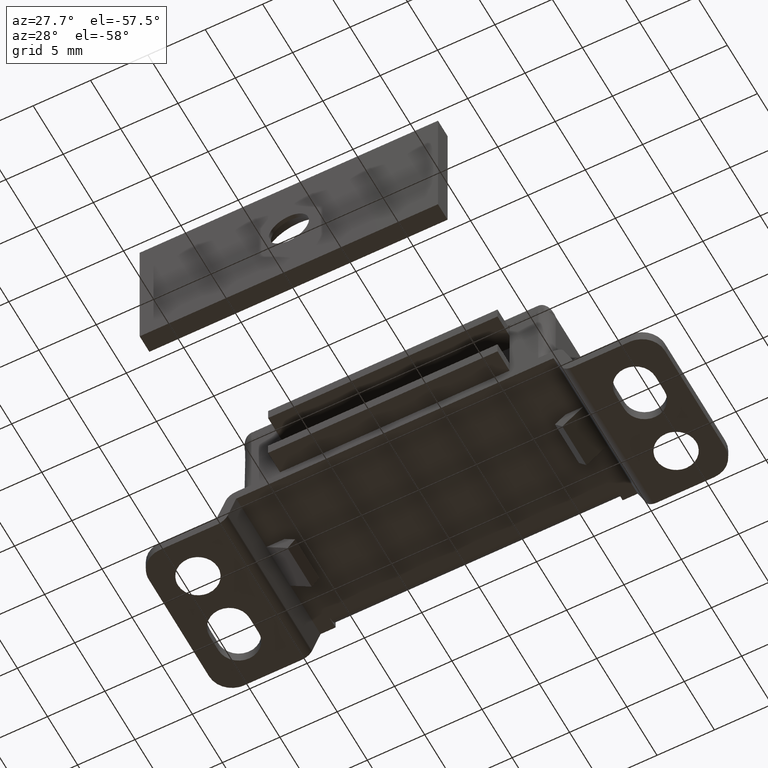
[diagram: clean part render]
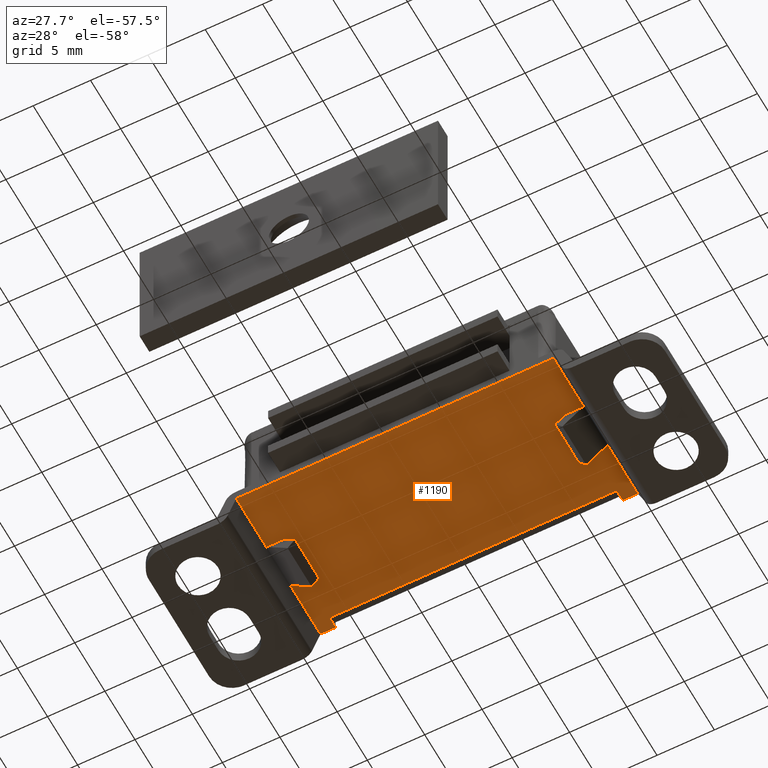
[diagram: same view with one face highlighted and labeled with its STEP entity id]
A machine part, auxiliary view. The second image highlights one B-rep face of the part: STEP entity #1190.
In plain terms, the highlighted face is a freeform B-spline surface patch.
Its self-contained STEP definition (entity closure, byte-faithful):
#512=CARTESIAN_POINT('',(-12.510014999999900,0.0,2.499999999999945));
#513=VERTEX_POINT('',#512);
#520=CARTESIAN_POINT('',(-12.510014999999900,-1.0,2.499999999999945));
#521=VERTEX_POINT('',#520);
#527=CARTESIAN_POINT('',(-12.510014999999900,-1.0,2.499999999999945));
#528=CARTESIAN_POINT('',(-12.510014999999900,0.0,2.499999999999945));
#529=QUASI_UNIFORM_CURVE('',1,(#527,#528),.UNSPECIFIED.,.F.,.U.);
#530=EDGE_CURVE('',#521,#513,#529,.T.);
#542=CARTESIAN_POINT('',(-13.822967000000000,0.0,2.499999999999945));
#543=VERTEX_POINT('',#542);
#544=CARTESIAN_POINT('',(-12.510014999999900,0.0,2.499999999999945));
#545=CARTESIAN_POINT('',(-13.822967000000000,0.0,2.499999999999945));
#546=QUASI_UNIFORM_CURVE('',1,(#544,#545),.UNSPECIFIED.,.F.,.U.);
#547=EDGE_CURVE('',#513,#543,#546,.T.);
#665=CARTESIAN_POINT('',(-12.234401999999999,-5.0,2.499999999999945));
#666=VERTEX_POINT('',#665);
#667=CARTESIAN_POINT('',(-13.822967000000000,-5.0,2.499999999999945));
#668=VERTEX_POINT('',#667);
#669=CARTESIAN_POINT('',(-12.234401999999999,-5.0,2.499999999999945));
#670=CARTESIAN_POINT('',(-13.822967000000000,-5.0,2.499999999999945));
#671=QUASI_UNIFORM_CURVE('',1,(#669,#670),.UNSPECIFIED.,.F.,.U.);
#672=EDGE_CURVE('',#666,#668,#671,.T.);
#693=CARTESIAN_POINT('',(-12.234401999999999,-9.0,2.499999999999945));
#694=VERTEX_POINT('',#693);
#695=CARTESIAN_POINT('',(-12.234401999999999,-9.0,2.499999999999945));
#696=CARTESIAN_POINT('',(-12.234401999999999,-5.0,2.499999999999945));
#697=QUASI_UNIFORM_CURVE('',1,(#695,#696),.UNSPECIFIED.,.F.,.U.);
#698=EDGE_CURVE('',#694,#666,#697,.T.);
#715=CARTESIAN_POINT('',(-13.822967000000000,-9.0,2.499999999999945));
#716=VERTEX_POINT('',#715);
#717=CARTESIAN_POINT('',(-13.822967000000000,-9.0,2.499999999999945));
#718=CARTESIAN_POINT('',(-12.234401999999999,-9.0,2.499999999999945));
#719=QUASI_UNIFORM_CURVE('',1,(#717,#718),.UNSPECIFIED.,.F.,.U.);
#720=EDGE_CURVE('',#716,#694,#719,.T.);
#761=CARTESIAN_POINT('',(-13.822967000000000,-14.0,2.499999999999945));
#762=VERTEX_POINT('',#761);
#768=CARTESIAN_POINT('',(13.822964000000001,-14.0,2.499999999999945));
#769=VERTEX_POINT('',#768);
#770=CARTESIAN_POINT('',(13.822964000000001,-14.0,2.499999999999945));
#771=CARTESIAN_POINT('',(-13.822967000000000,-14.0,2.499999999999945));
#772=QUASI_UNIFORM_CURVE('',1,(#770,#771),.UNSPECIFIED.,.F.,.U.);
#773=EDGE_CURVE('',#769,#762,#772,.T.);
#912=CARTESIAN_POINT('',(13.822967000000000,-9.0,2.499999999999945));
#913=VERTEX_POINT('',#912);
#914=CARTESIAN_POINT('',(12.234401999999999,-9.0,2.499999999999945));
#915=VERTEX_POINT('',#914);
#916=CARTESIAN_POINT('',(13.822967000000000,-9.0,2.499999999999945));
#917=CARTESIAN_POINT('',(12.234401999999999,-9.0,2.499999999999945));
#918=QUASI_UNIFORM_CURVE('',1,(#916,#917),.UNSPECIFIED.,.F.,.U.);
#919=EDGE_CURVE('',#913,#915,#918,.T.);
#940=CARTESIAN_POINT('',(12.234401999999999,-5.0,2.499999999999945));
#941=VERTEX_POINT('',#940);
#942=CARTESIAN_POINT('',(12.234401999999999,-9.0,2.499999999999945));
#943=CARTESIAN_POINT('',(12.234401999999999,-5.0,2.499999999999945));
#944=QUASI_UNIFORM_CURVE('',1,(#942,#943),.UNSPECIFIED.,.F.,.U.);
#945=EDGE_CURVE('',#915,#941,#944,.T.);
#962=CARTESIAN_POINT('',(13.822964000000001,-5.0,2.499999999999945));
#963=VERTEX_POINT('',#962);
#964=CARTESIAN_POINT('',(12.234401999999999,-5.0,2.499999999999945));
#965=CARTESIAN_POINT('',(13.822964000000001,-5.0,2.499999999999945));
#966=QUASI_UNIFORM_CURVE('',1,(#964,#965),.UNSPECIFIED.,.F.,.U.);
#967=EDGE_CURVE('',#941,#963,#966,.T.);
#984=CARTESIAN_POINT('',(12.510014999999900,0.0,2.499999999999945));
#985=VERTEX_POINT('',#984);
#1036=CARTESIAN_POINT('',(13.822964000000001,0.0,2.499999999999945));
#1037=VERTEX_POINT('',#1036);
#1043=CARTESIAN_POINT('',(13.822964000000001,0.0,2.499999999999945));
#1044=CARTESIAN_POINT('',(12.510014999999900,0.0,2.499999999999945));
#1045=QUASI_UNIFORM_CURVE('',1,(#1043,#1044),.UNSPECIFIED.,.F.,.U.);
#1046=EDGE_CURVE('',#1037,#985,#1045,.T.);
#1057=CARTESIAN_POINT('',(12.510014999999900,-1.0,2.499999999999945));
#1058=VERTEX_POINT('',#1057);
#1059=CARTESIAN_POINT('',(12.510014999999900,-1.0,2.499999999999945));
#1060=CARTESIAN_POINT('',(12.510014999999900,0.0,2.499999999999945));
#1061=QUASI_UNIFORM_CURVE('',1,(#1059,#1060),.UNSPECIFIED.,.F.,.U.);
#1062=EDGE_CURVE('',#1058,#985,#1061,.T.);
#1079=CARTESIAN_POINT('',(12.500014999999900,-1.0,2.499999999999945));
#1080=VERTEX_POINT('',#1079);
#1081=CARTESIAN_POINT('',(12.510014999999900,-1.0,2.499999999999945));
#1082=CARTESIAN_POINT('',(12.500014999999900,-1.0,2.499999999999945));
#1083=QUASI_UNIFORM_CURVE('',1,(#1081,#1082),.UNSPECIFIED.,.F.,.U.);
#1084=EDGE_CURVE('',#1058,#1080,#1083,.T.);
#1128=CARTESIAN_POINT('',(-12.500014999999900,-1.0,2.499999999999945));
#1129=VERTEX_POINT('',#1128);
#1130=CARTESIAN_POINT('',(-12.510014999999900,-1.0,2.499999999999945));
#1131=CARTESIAN_POINT('',(-12.500014999999900,-1.0,2.499999999999945));
#1132=QUASI_UNIFORM_CURVE('',1,(#1130,#1131),.UNSPECIFIED.,.F.,.U.);
#1133=EDGE_CURVE('',#521,#1129,#1132,.T.);
#1145=CARTESIAN_POINT('',(-15.203881349716820,-14.699299972865290,2.499999999999945));
#1146=CARTESIAN_POINT('',(15.203882091238549,-14.699299972865290,2.499999999999945));
#1147=CARTESIAN_POINT('',(-15.203881349716820,0.699300348374546,2.499999999999945));
#1148=CARTESIAN_POINT('',(15.203882091238549,0.699300348374546,2.499999999999945));
#1149=B_SPLINE_SURFACE_WITH_KNOTS('',1,1,((#1145,#1147),(#1146,#1148)),.UNSPECIFIED.,.F.,.F.,.U.,(2,2),(2,2),(0.0,30.407763440955360),(0.0,15.398600321239829),.UNSPECIFIED.);
#1150=ORIENTED_EDGE('',*,*,#1133,.T.);
#1151=CARTESIAN_POINT('',(-12.500014999999900,-1.0,2.499999999999945));
#1152=CARTESIAN_POINT('',(12.500014999999900,-1.0,2.499999999999945));
#1153=QUASI_UNIFORM_CURVE('',1,(#1151,#1152),.UNSPECIFIED.,.F.,.U.);
#1154=EDGE_CURVE('',#1129,#1080,#1153,.T.);
#1155=ORIENTED_EDGE('',*,*,#1154,.T.);
#1156=ORIENTED_EDGE('',*,*,#1084,.F.);
#1157=ORIENTED_EDGE('',*,*,#1062,.T.);
#1158=ORIENTED_EDGE('',*,*,#1046,.F.);
#1159=CARTESIAN_POINT('',(13.822964000000001,0.0,2.499999999999945));
#1160=CARTESIAN_POINT('',(13.822964000000001,-5.0,2.499999999999945));
#1161=QUASI_UNIFORM_CURVE('',1,(#1159,#1160),.UNSPECIFIED.,.F.,.U.);
#1162=EDGE_CURVE('',#1037,#963,#1161,.T.);
#1163=ORIENTED_EDGE('',*,*,#1162,.T.);
#1164=ORIENTED_EDGE('',*,*,#967,.F.);
#1165=ORIENTED_EDGE('',*,*,#945,.F.);
#1166=ORIENTED_EDGE('',*,*,#919,.F.);
#1167=CARTESIAN_POINT('',(13.822967000000000,-9.0,2.499999999999945));
#1168=CARTESIAN_POINT('',(13.822964000000001,-14.0,2.499999999999945));
#1169=QUASI_UNIFORM_CURVE('',1,(#1167,#1168),.UNSPECIFIED.,.F.,.U.);
#1170=EDGE_CURVE('',#913,#769,#1169,.T.);
#1171=ORIENTED_EDGE('',*,*,#1170,.T.);
#1172=ORIENTED_EDGE('',*,*,#773,.T.);
#1173=CARTESIAN_POINT('',(-13.822967000000000,-9.0,2.499999999999945));
#1174=CARTESIAN_POINT('',(-13.822967000000000,-14.0,2.499999999999945));
#1175=QUASI_UNIFORM_CURVE('',1,(#1173,#1174),.UNSPECIFIED.,.F.,.U.);
#1176=EDGE_CURVE('',#716,#762,#1175,.T.);
#1177=ORIENTED_EDGE('',*,*,#1176,.F.);
#1178=ORIENTED_EDGE('',*,*,#720,.T.);
#1179=ORIENTED_EDGE('',*,*,#698,.T.);
#1180=ORIENTED_EDGE('',*,*,#672,.T.);
#1181=CARTESIAN_POINT('',(-13.822967000000000,0.0,2.499999999999945));
#1182=CARTESIAN_POINT('',(-13.822967000000000,-5.0,2.499999999999945));
#1183=QUASI_UNIFORM_CURVE('',1,(#1181,#1182),.UNSPECIFIED.,.F.,.U.);
#1184=EDGE_CURVE('',#543,#668,#1183,.T.);
#1185=ORIENTED_EDGE('',*,*,#1184,.F.);
#1186=ORIENTED_EDGE('',*,*,#547,.F.);
#1187=ORIENTED_EDGE('',*,*,#530,.F.);
#1188=EDGE_LOOP('',(#1150,#1155,#1156,#1157,#1158,#1163,#1164,#1165,#1166,#1171,#1172,#1177,#1178,#1179,#1180,#1185,#1186,#1187));
#1189=FACE_OUTER_BOUND('',#1188,.T.);
#1190=ADVANCED_FACE('',(#1189),#1149,.F.);